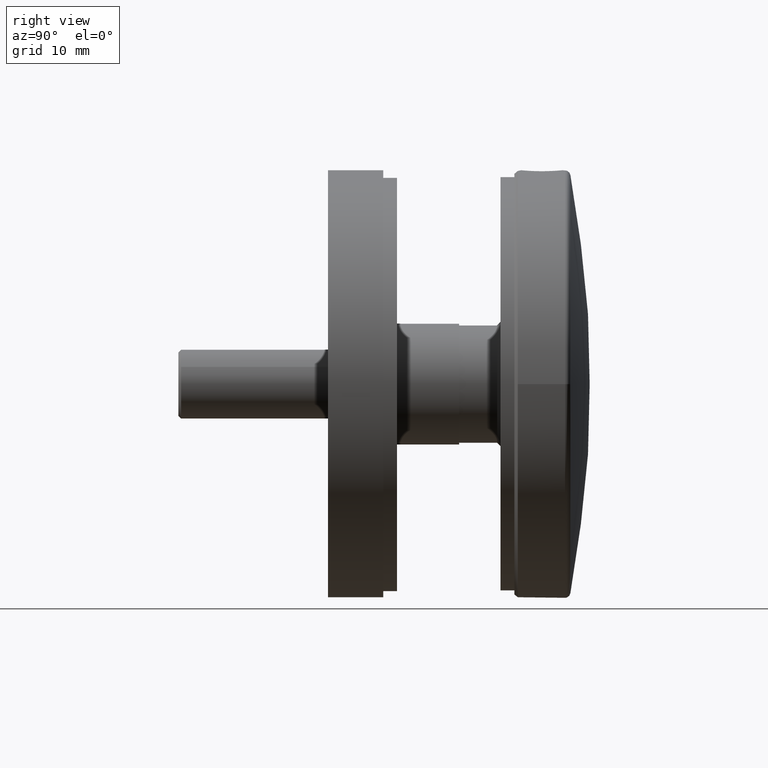
[diagram: clean part render]
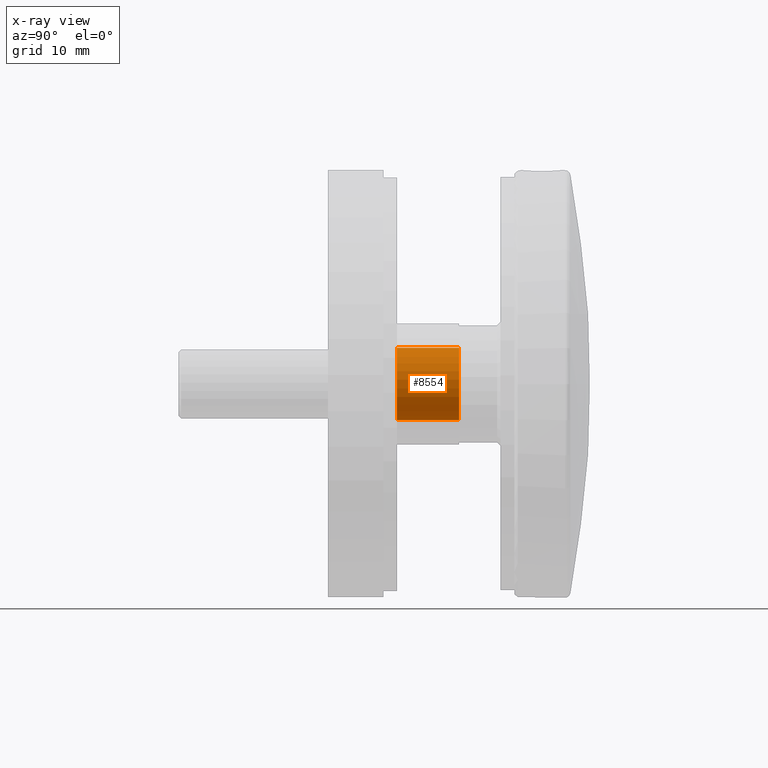
[diagram: x-ray — body ghosted, one internal face saturated and labeled with its STEP entity id]
A machine part, right view, then the same camera in x-ray: the body is ghosted and one INTERNAL B-rep face — a face not visible from any outside direction — is saturated and labeled: STEP entity #8554.
In plain terms, the highlighted cylindrical surface (bore or boss wall) has radius 5.25 mm, axis along (-0, -1, -0).
Its self-contained STEP definition (entity closure, byte-faithful):
#1050 = CIRCLE ( 'NONE', #16372, 5.250000000000000000 ) ;
#1055 = AXIS2_PLACEMENT_3D ( 'NONE', #18196, #16808, #11123 ) ;
#3874 = CARTESIAN_POINT ( 'NONE',  ( 0.000000000000000000, 0.000000000000000000, 5.250000000000000000 ) ) ;
#4462 = FACE_OUTER_BOUND ( 'NONE', #7004, .T. ) ;
#5426 = CARTESIAN_POINT ( 'NONE',  ( 0.000000000000000000, 0.000000000000000000, 0.000000000000000000 ) ) ;
#6676 = EDGE_CURVE ( 'NONE', #14473, #14473, #10631, .T. ) ;
#7004 = EDGE_LOOP ( 'NONE', ( #9000 ) ) ;
#8104 = CARTESIAN_POINT ( 'NONE',  ( 0.000000000000000000, 9.000000000000000000, 0.000000000000000000 ) ) ;
#8554 = ADVANCED_FACE ( 'NONE', ( #4462, #15318 ), #15757, .F. ) ;
#9000 = ORIENTED_EDGE ( 'NONE', *, *, #12604, .T. ) ;
#9350 = EDGE_LOOP ( 'NONE', ( #12526 ) ) ;
#10631 = CIRCLE ( 'NONE', #16308, 5.250000000000000000 ) ;
#11123 = DIRECTION ( 'NONE',  ( 0.000000000000000000, 0.000000000000000000, -1.000000000000000000 ) ) ;
#12523 = DIRECTION ( 'NONE',  ( 0.000000000000000000, 1.000000000000000000, 0.000000000000000000 ) ) ;
#12526 = ORIENTED_EDGE ( 'NONE', *, *, #6676, .F. ) ;
#12604 = EDGE_CURVE ( 'NONE', #17361, #17361, #1050, .T. ) ;
#13881 = CARTESIAN_POINT ( 'NONE',  ( 0.000000000000000000, 9.000000000000000000, 5.250000000000000000 ) ) ;
#13950 = DIRECTION ( 'NONE',  ( 0.000000000000000000, 1.000000000000000000, 0.000000000000000000 ) ) ;
#14473 = VERTEX_POINT ( 'NONE', #3874 ) ;
#15318 = FACE_OUTER_BOUND ( 'NONE', #9350, .T. ) ;
#15323 = DIRECTION ( 'NONE',  ( 0.000000000000000000, 0.000000000000000000, 1.000000000000000000 ) ) ;
#15757 = CYLINDRICAL_SURFACE ( 'NONE', #1055, 5.250000000000000000 ) ;
#16308 = AXIS2_PLACEMENT_3D ( 'NONE', #5426, #13950, #15323 ) ;
#16372 = AXIS2_PLACEMENT_3D ( 'NONE', #8104, #12523, #16680 ) ;
#16680 = DIRECTION ( 'NONE',  ( 0.000000000000000000, 0.000000000000000000, 1.000000000000000000 ) ) ;
#16808 = DIRECTION ( 'NONE',  ( -0.000000000000000000, -1.000000000000000000, -0.000000000000000000 ) ) ;
#17361 = VERTEX_POINT ( 'NONE', #13881 ) ;
#18196 = CARTESIAN_POINT ( 'NONE',  ( 0.000000000000000000, 9.000000000000000000, 0.000000000000000000 ) ) ;